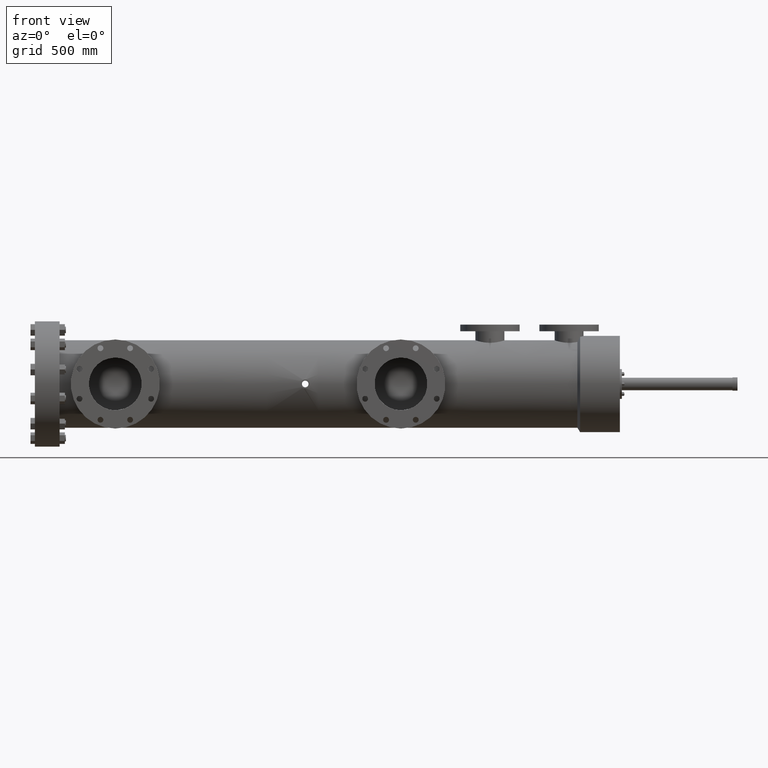
[diagram: clean part render]
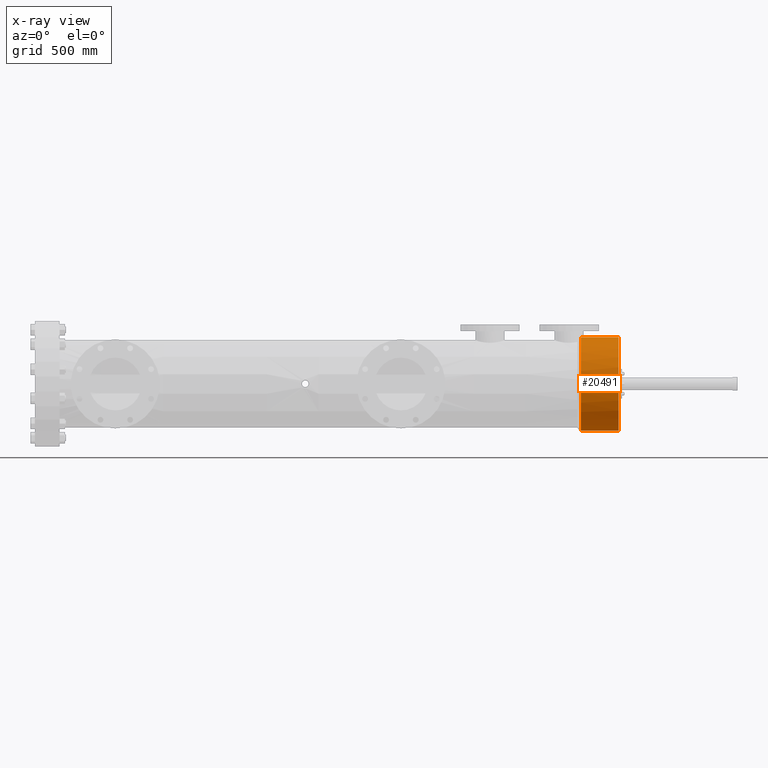
[diagram: x-ray — body ghosted, one internal face saturated and labeled with its STEP entity id]
A machine part, front view, then the same camera in x-ray: the body is ghosted and one INTERNAL B-rep face — a face not visible from any outside direction — is saturated and labeled: STEP entity #20491.
In plain terms, the highlighted cylindrical surface (partial cylindrical patch) has radius 180.18 mm, axis along (-1, -0, -0).
Its self-contained STEP definition (entity closure, byte-faithful):
#81 = EDGE_CURVE ( 'NONE', #20851, #23256, #12543, .T. ) ;
#808 = EDGE_CURVE ( 'NONE', #20851, #7460, #18343, .T. ) ;
#1151 = CARTESIAN_POINT ( 'NONE',  ( 777.4682186986195802, 183.5439808213130277, 7.067149670185615129 ) ) ;
#1888 = LINE ( 'NONE', #9835, #16091 ) ;
#3036 = CARTESIAN_POINT ( 'NONE',  ( 777.5264548845217405, 183.7708231893031154, 7.083032925512020128 ) ) ;
#3220 = EDGE_CURVE ( 'NONE', #23256, #7706, #4645, .T. ) ;
#3364 = CARTESIAN_POINT ( 'NONE',  ( 777.4908880000405134, 183.6184909039706667, 7.073292234949250634 ) ) ;
#3670 = CARTESIAN_POINT ( 'NONE',  ( 783.0782711814091499, 184.1613553879231517, -7.093684976580327373 ) ) ;
#3693 = CARTESIAN_POINT ( 'NONE',  ( 777.3473158315291585, 184.1613553879231517, -7.093684976580327373 ) ) ;
#4645 = CIRCLE ( 'NONE', #19288, 7.093684976580327373 ) ;
#5067 = CARTESIAN_POINT ( 'NONE',  ( 777.5649750460939913, 184.1613553879231517, 7.093684976580327373 ) ) ;
#7166 = CARTESIAN_POINT ( 'NONE',  ( 777.5403830863550638, 183.8482977120297051, 7.086879829206260695 ) ) ;
#7460 = VERTEX_POINT ( 'NONE', #19269 ) ;
#7706 = VERTEX_POINT ( 'NONE', #22203 ) ;
#8820 = EDGE_CURVE ( 'NONE', #7706, #18227, #11543, .T. ) ;
#9081 = DIRECTION ( 'NONE',  ( 0.0000000000000000000, 0.0000000000000000000, -1.000000000000000000 ) ) ;
#9484 = AXIS2_PLACEMENT_3D ( 'NONE', #17245, #25071, #20962 ) ;
#9835 = CARTESIAN_POINT ( 'NONE',  ( 694.5685801483002706, 184.1613553879231517, 7.093684976580327373 ) ) ;
#10213 = CARTESIAN_POINT ( 'NONE',  ( 694.5685801483002706, 184.1613553879231517, 0.0000000000000000000 ) ) ;
#10388 = DIRECTION ( 'NONE',  ( -1.000000000000000000, -0.0000000000000000000, -0.0000000000000000000 ) ) ;
#10893 = DIRECTION ( 'NONE',  ( -1.000000000000000000, -0.0000000000000000000, -0.0000000000000000000 ) ) ;
#10927 = CARTESIAN_POINT ( 'NONE',  ( 777.5183793447089329, 183.7324635109888789, 7.080809832946610705 ) ) ;
#11543 = B_SPLINE_CURVE_WITH_KNOTS ( 'NONE', 3,
 ( #23103, #15172, #12942, #1151, #3364, #10927, #3036, #7166, #16836, #16996, #14832, #5067 ),
 .UNSPECIFIED., .F., .F.,
 ( 4, 2, 2, 2, 2, 4 ),
 ( 0.0000000000000000000, 0.005952651262101941489, 0.01190530252420388298, 0.01488162815525609535, 0.01785795378630830946, 0.02381060504841273420 ),
 .UNSPECIFIED. ) ;
#11560 = DIRECTION ( 'NONE',  ( -1.000000000000000000, -0.0000000000000000000, -0.0000000000000000000 ) ) ;
#12543 = LINE ( 'NONE', #22377, #23304 ) ;
#12871 = FACE_OUTER_BOUND ( 'NONE', #21687, .T. ) ;
#12942 = CARTESIAN_POINT ( 'NONE',  ( 777.4142841587010935, 183.3978546467600950, 7.052859167355112646 ) ) ;
#14477 = DIRECTION ( 'NONE',  ( 0.0000000000000000000, 0.0000000000000000000, 1.000000000000000000 ) ) ;
#14658 = CARTESIAN_POINT ( 'NONE',  ( 777.5649750460939913, 184.1613553879231517, 7.093684976580327373 ) ) ;
#14832 = CARTESIAN_POINT ( 'NONE',  ( 777.5648935203680594, 184.0832452044293461, 7.093684976580324708 ) ) ;
#15172 = CARTESIAN_POINT ( 'NONE',  ( 777.3830196929984595, 183.3262383685094221, 7.044710532300978656 ) ) ;
#15444 = AXIS2_PLACEMENT_3D ( 'NONE', #10213, #10388, #14477 ) ;
#16091 = VECTOR ( 'NONE', #11560, 39.37007874015748143 ) ;
#16836 = CARTESIAN_POINT ( 'NONE',  ( 777.5462471872424430, 183.8875434419242652, 7.088506818123671671 ) ) ;
#16881 = CYLINDRICAL_SURFACE ( 'NONE', #15444, 7.093684976580327373 ) ;
#16996 = CARTESIAN_POINT ( 'NONE',  ( 777.5602523244089070, 184.0050295635768123, 7.092395234699489848 ) ) ;
#17083 = ORIENTED_EDGE ( 'NONE', *, *, #8820, .T. ) ;
#17245 = CARTESIAN_POINT ( 'NONE',  ( 783.0782711814091499, 184.1613553879231517, 0.0000000000000000000 ) ) ;
#17623 = EDGE_CURVE ( 'NONE', #7460, #18227, #1888, .T. ) ;
#18227 = VERTEX_POINT ( 'NONE', #14658 ) ;
#18343 = CIRCLE ( 'NONE', #9484, 7.093684976580327373 ) ;
#18488 = DIRECTION ( 'NONE',  ( -1.000000000000000000, -0.0000000000000000000, -0.0000000000000000000 ) ) ;
#18780 = CARTESIAN_POINT ( 'NONE',  ( 777.3473158315291585, 184.1613553879231517, 0.0000000000000000000 ) ) ;
#19269 = CARTESIAN_POINT ( 'NONE',  ( 783.0782711814091499, 184.1613553879231517, 7.093684976580327373 ) ) ;
#19288 = AXIS2_PLACEMENT_3D ( 'NONE', #18780, #10893, #9081 ) ;
#20010 = ORIENTED_EDGE ( 'NONE', *, *, #17623, .F. ) ;
#20173 = ORIENTED_EDGE ( 'NONE', *, *, #81, .T. ) ;
#20491 = ADVANCED_FACE ( 'NONE', ( #12871 ), #16881, .F. ) ;
#20851 = VERTEX_POINT ( 'NONE', #3670 ) ;
#20962 = DIRECTION ( 'NONE',  ( 0.0000000000000000000, 0.0000000000000000000, -1.000000000000000000 ) ) ;
#21687 = EDGE_LOOP ( 'NONE', ( #23060, #20173, #23712, #17083, #20010 ) ) ;
#22203 = CARTESIAN_POINT ( 'NONE',  ( 777.3473158315291585, 183.2561032092430935, 7.035686536504909938 ) ) ;
#22377 = CARTESIAN_POINT ( 'NONE',  ( 694.5685801483002706, 184.1613553879231517, -7.093684976580327373 ) ) ;
#23060 = ORIENTED_EDGE ( 'NONE', *, *, #808, .F. ) ;
#23103 = CARTESIAN_POINT ( 'NONE',  ( 777.3473158315291585, 183.2561032092430935, 7.035686536504909938 ) ) ;
#23256 = VERTEX_POINT ( 'NONE', #3693 ) ;
#23304 = VECTOR ( 'NONE', #18488, 39.37007874015748143 ) ;
#23712 = ORIENTED_EDGE ( 'NONE', *, *, #3220, .T. ) ;
#25071 = DIRECTION ( 'NONE',  ( -1.000000000000000000, -0.0000000000000000000, -0.0000000000000000000 ) ) ;